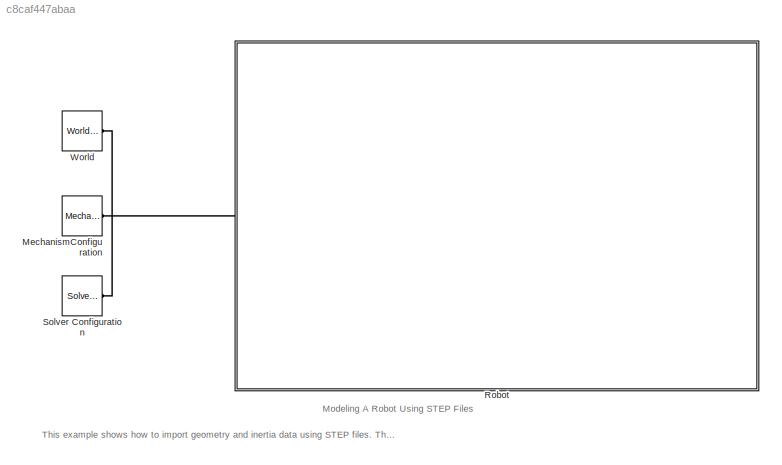
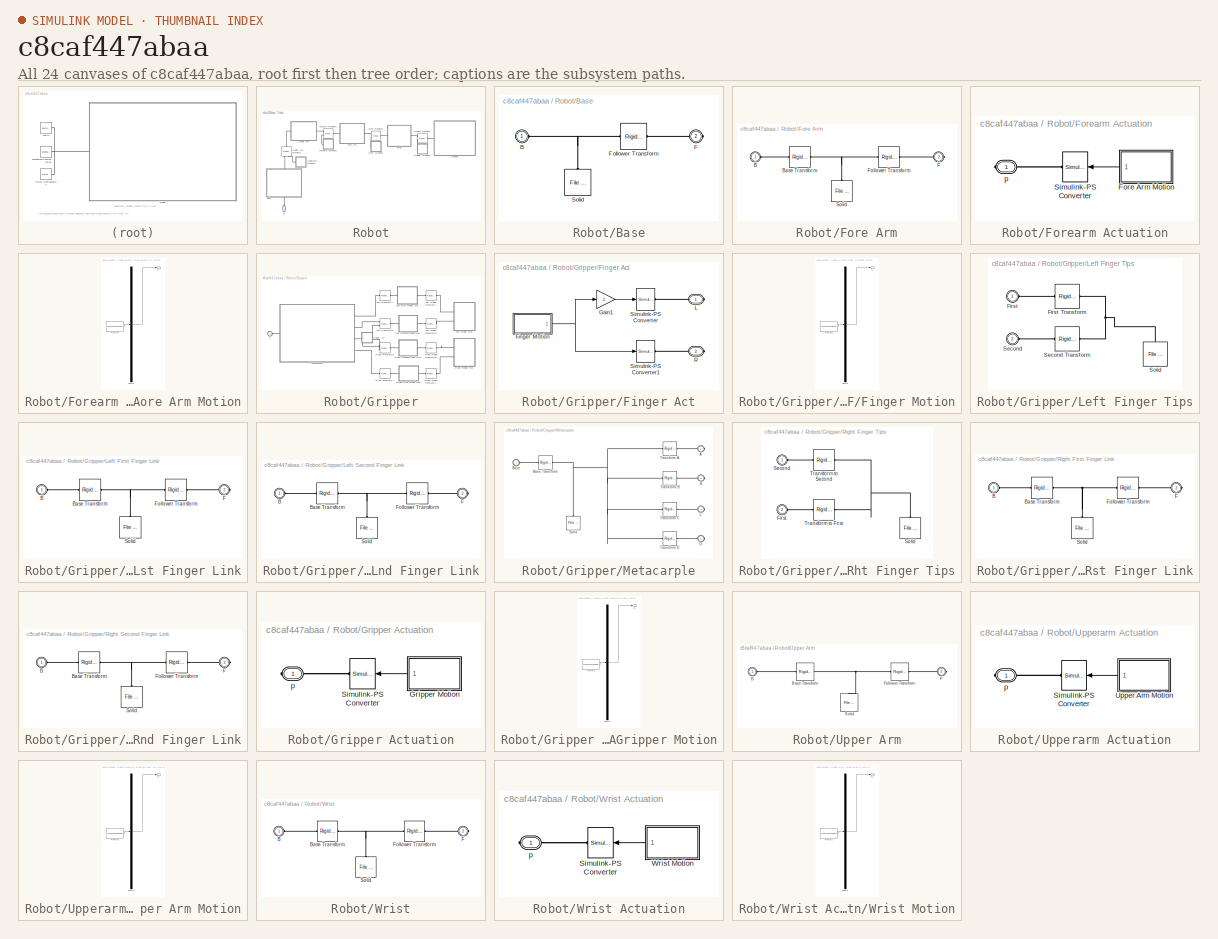
[diagram: thumbnail index - all 24 canvases of the model, root first then tree order]
MODEL slx_c8caf447abaa
KIND model
CONFIG AbsTol = auto
CONFIG EnableMultiTasking = on
CONFIG FixedStep = auto
CONFIG MaxStep = auto
CONFIG MinStep = auto
CONFIG RelTol = 1e-3
CONFIG SampleTimeConstraint = Unconstrained
CONFIG SolverName = ode45
CONFIG StartTime = 0.0
CONFIG StopTime = 20
BLOCK [Reference] MechanismConfiguration  REF=sm_lib/Utilities/Mechanism
Configuration
  Ports = [0, 0, 0, 0, 0, 0, 1]
  SourceBlock = sm_lib/Utilities/Mechanism\nConfiguration
  SourceProductBaseCode = MS
  SourceType = Mechanism\nConfiguration
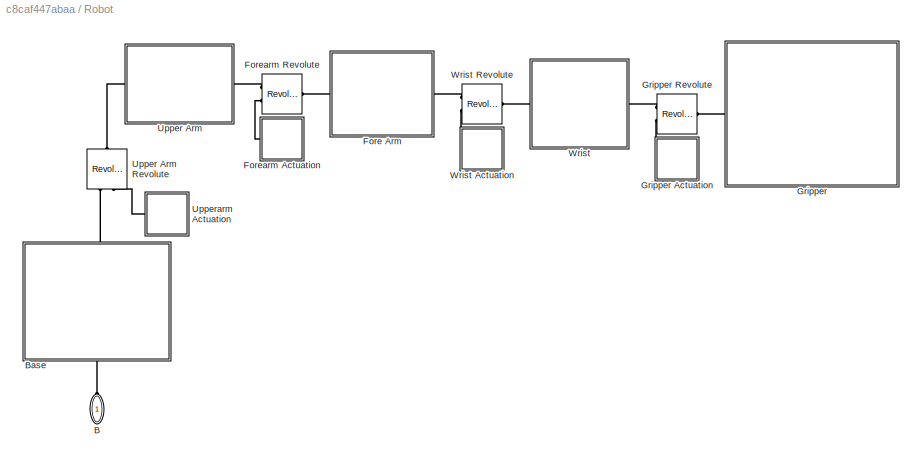
BLOCK [SubSystem] Robot
  NameLocation = top
  Ports = [0, 0, 0, 0, 0, 1]
  RequestExecContextInheritance = off
BLOCK [PMIOPort] Robot/B
  NameLocation = right
  Side = Left
BLOCK [SubSystem] Robot/Base
  NameLocation = right
  Ports = [0, 0, 0, 0, 0, 1, 1]
  RequestExecContextInheritance = off
BLOCK [PMIOPort] Robot/Base/B
  NameLocation = top
  Side = Left
BLOCK [PMIOPort] Robot/Base/F
  NameLocation = top
  Port = 2
  Side = Right
BLOCK [Reference] Robot/Base/Follower Transform  REF=sm_lib/Frames and
Transforms/Rigid
Transform
  Ports = [0, 0, 0, 0, 0, 1, 1]
  SourceBlock = sm_lib/Frames and\nTransforms/Rigid\nTransform
  SourceProductBaseCode = MS
  SourceType = Rigid\nTransform
BLOCK [Reference] Robot/Base/Solid  REF=sm_lib/Body Elements/File Solid
  NameLocation = right
  Ports = [0, 0, 0, 0, 0, 0, 1]
  SourceBlock = sm_lib/Body Elements/File Solid
  SourceProductBaseCode = MS
  SourceType = File Solid
BLOCK [SubSystem] Robot/Fore Arm
  NameLocation = top
  Ports = [0, 0, 0, 0, 0, 1, 1]
  RequestExecContextInheritance = off
BLOCK [PMIOPort] Robot/Fore Arm/B
  NameLocation = top
  Side = Left
BLOCK [Reference] Robot/Fore Arm/Base Transform  REF=sm_lib/Frames and
Transforms/Rigid
Transform
  NameLocation = top
  Ports = [0, 0, 0, 0, 0, 1, 1]
  SourceBlock = sm_lib/Frames and\nTransforms/Rigid\nTransform
  SourceProductBaseCode = MS
  SourceType = Rigid\nTransform
BLOCK [PMIOPort] Robot/Fore Arm/F
  NameLocation = top
  Port = 2
  Side = Right
BLOCK [Reference] Robot/Fore Arm/Follower Transform  REF=sm_lib/Frames and
Transforms/Rigid
Transform
  NameLocation = top
  Ports = [0, 0, 0, 0, 0, 1, 1]
  SourceBlock = sm_lib/Frames and\nTransforms/Rigid\nTransform
  SourceProductBaseCode = MS
  SourceType = Rigid\nTransform
BLOCK [Reference] Robot/Fore Arm/Solid  REF=sm_lib/Body Elements/File Solid
  NameLocation = right
  Ports = [0, 0, 0, 0, 0, 0, 1]
  SourceBlock = sm_lib/Body Elements/File Solid
  SourceProductBaseCode = MS
  SourceType = File Solid
BLOCK [SubSystem] Robot/Forearm Actuation
  Ports = [0, 0, 0, 0, 0, 0, 1]
  RequestExecContextInheritance = off
BLOCK [SubSystem] Robot/Forearm Actuation/Fore Arm Motion
  ClipboardFcn = sigbuilder_block('clipboard');
  CloseFcn = sigbuilder_block('close');
  ContinueFcn = sigbuilder_block('continue');
  CopyFcn = sigbuilder_block('copy');
  DeleteFcn = sigbuilder_block('delete');
  LoadFcn = sigbuilder_block('load');
  MaskHideContents = on
  ModelCloseFcn = sigbuilder_block('modelClose');
  NameChangeFcn = sigbuilder_block('namechange');
  NameLocation = top
  OpenFcn = sigbuilder_block('open',[437.6 199.2 550.4 400 ]);
  PauseFcn = sigbuilder_block('pause');
  Ports = [0, 1]
  PreSaveFcn = sigbuilder_block('preSave');
  RequestExecContextInheritance = off
  StartFcn = sigbuilder_block('start');
  StopFcn = sigbuilder_block('stop');
  Tag = STV Subsys
BLOCK [Demux] Robot/Forearm Actuation/Fore Arm Motion/Demux
  DisplayOption = none
  Outputs = 1
  Ports = [1, 1]
  Tag = STV Demux
BLOCK [Outport] Robot/Forearm Actuation/Fore Arm Motion/FA
  Tag = STV Outport
BLOCK [FromWorkspace] Robot/Forearm Actuation/Fore Arm Motion/FromWs
  Tag = STV FromWs
  VariableName = tuvar
BLOCK [Reference] Robot/Forearm Actuation/Simulink-PS Converter  REF=nesl_utility/Simulink-PS
Converter
  NameLocation = top
  Ports = [1, 0, 0, 0, 0, 0, 1]
  SourceBlock = nesl_utility/Simulink-PS\nConverter
  SourceProductBaseCode = PW,SS
  SourceType = Simulink-PS\nConverter
BLOCK [PMIOPort] Robot/Forearm Actuation/p
  NameLocation = top
  Side = Right
BLOCK [Reference] Robot/Forearm Revolute  REF=sm_lib/Joints/Revolute Joint
  NameLocation = top
  Ports = [0, 0, 0, 0, 0, 2, 1]
  SourceBlock = sm_lib/Joints/Revolute Joint
  SourceProductBaseCode = MS
  SourceType = Revolute Joint
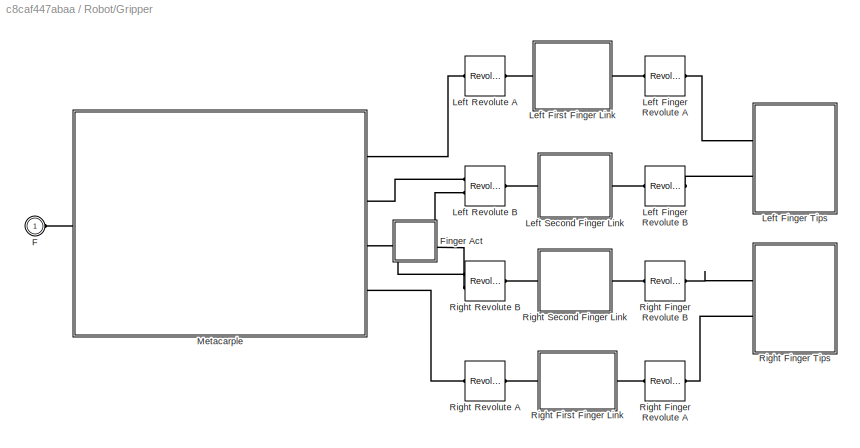
BLOCK [SubSystem] Robot/Gripper
  NameLocation = top
  Ports = [0, 0, 0, 0, 0, 1]
  RequestExecContextInheritance = off
BLOCK [SubSystem] Robot/Gripper Actuation
  Ports = [0, 0, 0, 0, 0, 0, 1]
  RequestExecContextInheritance = off
BLOCK [SubSystem] Robot/Gripper Actuation/Gripper Motion
  ClipboardFcn = sigbuilder_block('clipboard');
  CloseFcn = sigbuilder_block('close');
  ContinueFcn = sigbuilder_block('continue');
  CopyFcn = sigbuilder_block('copy');
  DeleteFcn = sigbuilder_block('delete');
  LoadFcn = sigbuilder_block('load');
  MaskHideContents = on
  ModelCloseFcn = sigbuilder_block('modelClose');
  NameChangeFcn = sigbuilder_block('namechange');
  NameLocation = top
  OpenFcn = sigbuilder_block('open',[437.6 199.2 550.4 400 ]);
  PauseFcn = sigbuilder_block('pause');
  Ports = [0, 1]
  PreSaveFcn = sigbuilder_block('preSave');
  RequestExecContextInheritance = off
  StartFcn = sigbuilder_block('start');
  StopFcn = sigbuilder_block('stop');
  Tag = STV Subsys
BLOCK [Demux] Robot/Gripper Actuation/Gripper Motion/Demux
  DisplayOption = none
  Outputs = 1
  Ports = [1, 1]
  Tag = STV Demux
BLOCK [FromWorkspace] Robot/Gripper Actuation/Gripper Motion/FromWs
  Tag = STV FromWs
  VariableName = tuvar
BLOCK [Outport] Robot/Gripper Actuation/Gripper Motion/GA
  Tag = STV Outport
BLOCK [Reference] Robot/Gripper Actuation/Simulink-PS Converter  REF=nesl_utility/Simulink-PS
Converter
  NameLocation = top
  Ports = [1, 0, 0, 0, 0, 0, 1]
  SourceBlock = nesl_utility/Simulink-PS\nConverter
  SourceProductBaseCode = PW,SS
  SourceType = Simulink-PS\nConverter
BLOCK [PMIOPort] Robot/Gripper Actuation/p
  NameLocation = top
  Side = Right
BLOCK [Reference] Robot/Gripper Revolute  REF=sm_lib/Joints/Revolute Joint
  NameLocation = top
  Ports = [0, 0, 0, 0, 0, 2, 1]
  SourceBlock = sm_lib/Joints/Revolute Joint
  SourceProductBaseCode = MS
  SourceType = Revolute Joint
BLOCK [PMIOPort] Robot/Gripper/F
  Side = Left
BLOCK [SubSystem] Robot/Gripper/Finger Act
  NameLocation = top
  Ports = [0, 0, 0, 0, 0, 0, 2]
  RequestExecContextInheritance = off
BLOCK [SubSystem] Robot/Gripper/Finger Act/Finger Motion
  ClipboardFcn = sigbuilder_block('clipboard');
  CloseFcn = sigbuilder_block('close');
  ContinueFcn = sigbuilder_block('continue');
  CopyFcn = sigbuilder_block('copy');
  DeleteFcn = sigbuilder_block('delete');
  LoadFcn = sigbuilder_block('load');
  MaskHideContents = on
  ModelCloseFcn = sigbuilder_block('modelClose');
  NameChangeFcn = sigbuilder_block('namechange');
  OpenFcn = sigbuilder_block('open',[437.6 199.2 550.4 400 ]);
  PauseFcn = sigbuilder_block('pause');
  Ports = [0, 1]
  PreSaveFcn = sigbuilder_block('preSave');
  RequestExecContextInheritance = off
  StartFcn = sigbuilder_block('start');
  StopFcn = sigbuilder_block('stop');
  Tag = STV Subsys
BLOCK [Demux] Robot/Gripper/Finger Act/Finger Motion/Demux
  DisplayOption = none
  Outputs = 1
  Ports = [1, 1]
  Tag = STV Demux
BLOCK [Outport] Robot/Gripper/Finger Act/Finger Motion/FA
  Tag = STV Outport
BLOCK [FromWorkspace] Robot/Gripper/Finger Act/Finger Motion/FromWs
  Tag = STV FromWs
  VariableName = tuvar
BLOCK [Gain] Robot/Gripper/Finger Act/Gain1
  Gain = -1
BLOCK [PMIOPort] Robot/Gripper/Finger Act/L
  Side = Right
BLOCK [PMIOPort] Robot/Gripper/Finger Act/R
  Port = 2
  Side = Right
BLOCK [Reference] Robot/Gripper/Finger Act/Simulink-PS Converter  REF=nesl_utility/Simulink-PS
Converter
  Ports = [1, 0, 0, 0, 0, 0, 1]
  SourceBlock = nesl_utility/Simulink-PS\nConverter
  SourceProductBaseCode = PW,SS
  SourceType = Simulink-PS\nConverter
BLOCK [Reference] Robot/Gripper/Finger Act/Simulink-PS Converter1  REF=nesl_utility/Simulink-PS
Converter
  Ports = [1, 0, 0, 0, 0, 0, 1]
  SourceBlock = nesl_utility/Simulink-PS\nConverter
  SourceProductBaseCode = PW,SS
  SourceType = Simulink-PS\nConverter
BLOCK [Reference] Robot/Gripper/Left Finger Revolute  A  REF=sm_lib/Joints/Revolute Joint
  NameLocation = top
  Ports = [0, 0, 0, 0, 0, 1, 1]
  SourceBlock = sm_lib/Joints/Revolute Joint
  SourceProductBaseCode = MS
  SourceType = Revolute Joint
BLOCK [Reference] Robot/Gripper/Left Finger Revolute B  REF=sm_lib/Joints/Revolute Joint
  NameLocation = top
  Ports = [0, 0, 0, 0, 0, 1, 1]
  SourceBlock = sm_lib/Joints/Revolute Joint
  SourceProductBaseCode = MS
  SourceType = Revolute Joint
BLOCK [SubSystem] Robot/Gripper/Left Finger Tips
  NameLocation = top
  Ports = [0, 0, 0, 0, 0, 2]
  RequestExecContextInheritance = off
BLOCK [PMIOPort] Robot/Gripper/Left Finger Tips/First
  NameLocation = top
  Side = Left
BLOCK [Reference] Robot/Gripper/Left Finger Tips/First Transform  REF=sm_lib/Frames and
Transforms/Rigid
Transform
  NameLocation = top
  Ports = [0, 0, 0, 0, 0, 1, 1]
  SourceBlock = sm_lib/Frames and\nTransforms/Rigid\nTransform
  SourceProductBaseCode = MS
  SourceType = Rigid\nTransform
BLOCK [PMIOPort] Robot/Gripper/Left Finger Tips/Second
  NameLocation = top
  Port = 2
  Side = Left
BLOCK [Reference] Robot/Gripper/Left Finger Tips/Second Transform  REF=sm_lib/Frames and
Transforms/Rigid
Transform
  Ports = [0, 0, 0, 0, 0, 1, 1]
  SourceBlock = sm_lib/Frames and\nTransforms/Rigid\nTransform
  SourceProductBaseCode = MS
  SourceType = Rigid\nTransform
BLOCK [Reference] Robot/Gripper/Left Finger Tips/Solid  REF=sm_lib/Body Elements/File Solid
  NameLocation = right
  Ports = [0, 0, 0, 0, 0, 0, 1]
  SourceBlock = sm_lib/Body Elements/File Solid
  SourceProductBaseCode = MS
  SourceType = File Solid
BLOCK [SubSystem] Robot/Gripper/Left First Finger Link
  NameLocation = top
  Ports = [0, 0, 0, 0, 0, 1, 1]
  RequestExecContextInheritance = off
BLOCK [PMIOPort] Robot/Gripper/Left First Finger Link/B
  NameLocation = top
  Side = Left
BLOCK [Reference] Robot/Gripper/Left First Finger Link/Base Transform  REF=sm_lib/Frames and
Transforms/Rigid
Transform
  NameLocation = top
  Ports = [0, 0, 0, 0, 0, 1, 1]
  SourceBlock = sm_lib/Frames and\nTransforms/Rigid\nTransform
  SourceProductBaseCode = MS
  SourceType = Rigid\nTransform
BLOCK [PMIOPort] Robot/Gripper/Left First Finger Link/F
  NameLocation = top
  Port = 2
  Side = Right
BLOCK [Reference] Robot/Gripper/Left First Finger Link/Follower Transform  REF=sm_lib/Frames and
Transforms/Rigid
Transform
  NameLocation = top
  Ports = [0, 0, 0, 0, 0, 1, 1]
  SourceBlock = sm_lib/Frames and\nTransforms/Rigid\nTransform
  SourceProductBaseCode = MS
  SourceType = Rigid\nTransform
BLOCK [Reference] Robot/Gripper/Left First Finger Link/Solid  REF=sm_lib/Body Elements/File Solid
  NameLocation = right
  Ports = [0, 0, 0, 0, 0, 0, 1]
  SourceBlock = sm_lib/Body Elements/File Solid
  SourceProductBaseCode = MS
  SourceType = File Solid
BLOCK [Reference] Robot/Gripper/Left Revolute A  REF=sm_lib/Joints/Revolute Joint
  NameLocation = top
  Ports = [0, 0, 0, 0, 0, 1, 1]
  SourceBlock = sm_lib/Joints/Revolute Joint
  SourceProductBaseCode = MS
  SourceType = Revolute Joint
BLOCK [Reference] Robot/Gripper/Left Revolute B  REF=sm_lib/Joints/Revolute Joint
  NameLocation = top
  Ports = [0, 0, 0, 0, 0, 2, 1]
  SourceBlock = sm_lib/Joints/Revolute Joint
  SourceProductBaseCode = MS
  SourceType = Revolute Joint
BLOCK [SubSystem] Robot/Gripper/Left Second Finger Link
  NameLocation = top
  Ports = [0, 0, 0, 0, 0, 1, 1]
  RequestExecContextInheritance = off
BLOCK [PMIOPort] Robot/Gripper/Left Second Finger Link/B
  NameLocation = top
  Side = Left
BLOCK [Reference] Robot/Gripper/Left Second Finger Link/Base Transform  REF=sm_lib/Frames and
Transforms/Rigid
Transform
  NameLocation = top
  Ports = [0, 0, 0, 0, 0, 1, 1]
  SourceBlock = sm_lib/Frames and\nTransforms/Rigid\nTransform
  SourceProductBaseCode = MS
  SourceType = Rigid\nTransform
BLOCK [PMIOPort] Robot/Gripper/Left Second Finger Link/F
  NameLocation = top
  Port = 2
  Side = Right
BLOCK [Reference] Robot/Gripper/Left Second Finger Link/Follower Transform  REF=sm_lib/Frames and
Transforms/Rigid
Transform
  NameLocation = top
  Ports = [0, 0, 0, 0, 0, 1, 1]
  SourceBlock = sm_lib/Frames and\nTransforms/Rigid\nTransform
  SourceProductBaseCode = MS
  SourceType = Rigid\nTransform
BLOCK [Reference] Robot/Gripper/Left Second Finger Link/Solid  REF=sm_lib/Body Elements/File Solid
  NameLocation = right
  Ports = [0, 0, 0, 0, 0, 0, 1]
  SourceBlock = sm_lib/Body Elements/File Solid
  SourceProductBaseCode = MS
  SourceType = File Solid
BLOCK [SubSystem] Robot/Gripper/Metacarple
  Ports = [0, 0, 0, 0, 0, 1, 4]
  RequestExecContextInheritance = off
BLOCK [PMIOPort] Robot/Gripper/Metacarple/A
  NameLocation = top
  Port = 2
  Side = Right
BLOCK [PMIOPort] Robot/Gripper/Metacarple/B
  NameLocation = top
  Port = 3
  Side = Right
BLOCK [PMIOPort] Robot/Gripper/Metacarple/Base
  NameLocation = top
  Side = Left
BLOCK [Reference] Robot/Gripper/Metacarple/Base Transform  REF=sm_lib/Frames and
Transforms/Rigid
Transform
  NameLocation = top
  Ports = [0, 0, 0, 0, 0, 1, 1]
  SourceBlock = sm_lib/Frames and\nTransforms/Rigid\nTransform
  SourceProductBaseCode = MS
  SourceType = Rigid\nTransform
BLOCK [PMIOPort] Robot/Gripper/Metacarple/C
  NameLocation = top
  Port = 4
  Side = Right
BLOCK [PMIOPort] Robot/Gripper/Metacarple/D
  NameLocation = top
  Port = 5
  Side = Right
BLOCK [Reference] Robot/Gripper/Metacarple/Solid  REF=sm_lib/Body Elements/File Solid
  NameLocation = right
  Ports = [0, 0, 0, 0, 0, 0, 1]
  SourceBlock = sm_lib/Body Elements/File Solid
  SourceProductBaseCode = MS
  SourceType = File Solid
BLOCK [Reference] Robot/Gripper/Metacarple/Transform A  REF=sm_lib/Frames and
Transforms/Rigid
Transform
  NameLocation = top
  Ports = [0, 0, 0, 0, 0, 1, 1]
  SourceBlock = sm_lib/Frames and\nTransforms/Rigid\nTransform
  SourceProductBaseCode = MS
  SourceType = Rigid\nTransform
BLOCK [Reference] Robot/Gripper/Metacarple/Transform B  REF=sm_lib/Frames and
Transforms/Rigid
Transform
  NameLocation = top
  Ports = [0, 0, 0, 0, 0, 1, 1]
  SourceBlock = sm_lib/Frames and\nTransforms/Rigid\nTransform
  SourceProductBaseCode = MS
  SourceType = Rigid\nTransform
BLOCK [Reference] Robot/Gripper/Metacarple/Transform C  REF=sm_lib/Frames and
Transforms/Rigid
Transform
  NameLocation = top
  Ports = [0, 0, 0, 0, 0, 1, 1]
  SourceBlock = sm_lib/Frames and\nTransforms/Rigid\nTransform
  SourceProductBaseCode = MS
  SourceType = Rigid\nTransform
BLOCK [Reference] Robot/Gripper/Metacarple/Transform D  REF=sm_lib/Frames and
Transforms/Rigid
Transform
  NameLocation = top
  Ports = [0, 0, 0, 0, 0, 1, 1]
  SourceBlock = sm_lib/Frames and\nTransforms/Rigid\nTransform
  SourceProductBaseCode = MS
  SourceType = Rigid\nTransform
BLOCK [Reference] Robot/Gripper/Right Finger Revolute A  REF=sm_lib/Joints/Revolute Joint
  Ports = [0, 0, 0, 0, 0, 1, 1]
  SourceBlock = sm_lib/Joints/Revolute Joint
  SourceProductBaseCode = MS
  SourceType = Revolute Joint
BLOCK [Reference] Robot/Gripper/Right Finger Revolute B  REF=sm_lib/Joints/Revolute Joint
  Ports = [0, 0, 0, 0, 0, 1, 1]
  SourceBlock = sm_lib/Joints/Revolute Joint
  SourceProductBaseCode = MS
  SourceType = Revolute Joint
BLOCK [SubSystem] Robot/Gripper/Right Finger Tips
  Ports = [0, 0, 0, 0, 0, 2]
  RequestExecContextInheritance = off
BLOCK [PMIOPort] Robot/Gripper/Right Finger Tips/First
  NameLocation = top
  Port = 2
  Side = Left
BLOCK [PMIOPort] Robot/Gripper/Right Finger Tips/Second
  NameLocation = top
  Side = Left
BLOCK [Reference] Robot/Gripper/Right Finger Tips/Solid  REF=sm_lib/Body Elements/File Solid
  NameLocation = right
  Ports = [0, 0, 0, 0, 0, 0, 1]
  SourceBlock = sm_lib/Body Elements/File Solid
  SourceProductBaseCode = MS
  SourceType = File Solid
BLOCK [Reference] Robot/Gripper/Right Finger Tips/Transform to First  REF=sm_lib/Frames and
Transforms/Rigid
Transform
  NameLocation = top
  Ports = [0, 0, 0, 0, 0, 1, 1]
  SourceBlock = sm_lib/Frames and\nTransforms/Rigid\nTransform
  SourceProductBaseCode = MS
  SourceType = Rigid\nTransform
BLOCK [Reference] Robot/Gripper/Right Finger Tips/Transform to Second  REF=sm_lib/Frames and
Transforms/Rigid
Transform
  NameLocation = top
  Ports = [0, 0, 0, 0, 0, 1, 1]
  SourceBlock = sm_lib/Frames and\nTransforms/Rigid\nTransform
  SourceProductBaseCode = MS
  SourceType = Rigid\nTransform
BLOCK [SubSystem] Robot/Gripper/Right First Finger Link
  Ports = [0, 0, 0, 0, 0, 1, 1]
  RequestExecContextInheritance = off
BLOCK [PMIOPort] Robot/Gripper/Right First Finger Link/B
  NameLocation = top
  Side = Left
BLOCK [Reference] Robot/Gripper/Right First Finger Link/Base Transform  REF=sm_lib/Frames and
Transforms/Rigid
Transform
  NameLocation = top
  Ports = [0, 0, 0, 0, 0, 1, 1]
  SourceBlock = sm_lib/Frames and\nTransforms/Rigid\nTransform
  SourceProductBaseCode = MS
  SourceType = Rigid\nTransform
BLOCK [PMIOPort] Robot/Gripper/Right First Finger Link/F
  NameLocation = top
  Port = 2
  Side = Right
BLOCK [Reference] Robot/Gripper/Right First Finger Link/Follower Transform  REF=sm_lib/Frames and
Transforms/Rigid
Transform
  NameLocation = top
  Ports = [0, 0, 0, 0, 0, 1, 1]
  SourceBlock = sm_lib/Frames and\nTransforms/Rigid\nTransform
  SourceProductBaseCode = MS
  SourceType = Rigid\nTransform
BLOCK [Reference] Robot/Gripper/Right First Finger Link/Solid  REF=sm_lib/Body Elements/File Solid
  NameLocation = right
  Ports = [0, 0, 0, 0, 0, 0, 1]
  SourceBlock = sm_lib/Body Elements/File Solid
  SourceProductBaseCode = MS
  SourceType = File Solid
BLOCK [Reference] Robot/Gripper/Right Revolute A  REF=sm_lib/Joints/Revolute Joint
  Ports = [0, 0, 0, 0, 0, 1, 1]
  SourceBlock = sm_lib/Joints/Revolute Joint
  SourceProductBaseCode = MS
  SourceType = Revolute Joint
BLOCK [Reference] Robot/Gripper/Right Revolute B  REF=sm_lib/Joints/Revolute Joint
  Ports = [0, 0, 0, 0, 0, 2, 1]
  SourceBlock = sm_lib/Joints/Revolute Joint
  SourceProductBaseCode = MS
  SourceType = Revolute Joint
BLOCK [SubSystem] Robot/Gripper/Right Second Finger Link
  Ports = [0, 0, 0, 0, 0, 1, 1]
  RequestExecContextInheritance = off
BLOCK [PMIOPort] Robot/Gripper/Right Second Finger Link/B
  NameLocation = top
  Side = Left
BLOCK [Reference] Robot/Gripper/Right Second Finger Link/Base Transform  REF=sm_lib/Frames and
Transforms/Rigid
Transform
  NameLocation = top
  Ports = [0, 0, 0, 0, 0, 1, 1]
  SourceBlock = sm_lib/Frames and\nTransforms/Rigid\nTransform
  SourceProductBaseCode = MS
  SourceType = Rigid\nTransform
BLOCK [PMIOPort] Robot/Gripper/Right Second Finger Link/F
  NameLocation = top
  Port = 2
  Side = Right
BLOCK [Reference] Robot/Gripper/Right Second Finger Link/Follower Transform  REF=sm_lib/Frames and
Transforms/Rigid
Transform
  NameLocation = top
  Ports = [0, 0, 0, 0, 0, 1, 1]
  SourceBlock = sm_lib/Frames and\nTransforms/Rigid\nTransform
  SourceProductBaseCode = MS
  SourceType = Rigid\nTransform
BLOCK [Reference] Robot/Gripper/Right Second Finger Link/Solid  REF=sm_lib/Body Elements/File Solid
  NameLocation = right
  Ports = [0, 0, 0, 0, 0, 0, 1]
  SourceBlock = sm_lib/Body Elements/File Solid
  SourceProductBaseCode = MS
  SourceType = File Solid
BLOCK [SubSystem] Robot/Upper Arm
  NameLocation = top
  Ports = [0, 0, 0, 0, 0, 1, 1]
  RequestExecContextInheritance = off
BLOCK [Reference] Robot/Upper Arm Revolute  REF=sm_lib/Joints/Revolute Joint
  NameLocation = left
  Ports = [0, 0, 0, 0, 0, 2, 1]
  SourceBlock = sm_lib/Joints/Revolute Joint
  SourceProductBaseCode = MS
  SourceType = Revolute Joint
BLOCK [PMIOPort] Robot/Upper Arm/B
  NameLocation = top
  Side = Left
BLOCK [Reference] Robot/Upper Arm/Base Transform  REF=sm_lib/Frames and
Transforms/Rigid
Transform
  NameLocation = top
  Ports = [0, 0, 0, 0, 0, 1, 1]
  SourceBlock = sm_lib/Frames and\nTransforms/Rigid\nTransform
  SourceProductBaseCode = MS
  SourceType = Rigid\nTransform
BLOCK [PMIOPort] Robot/Upper Arm/F
  NameLocation = top
  Port = 2
  Side = Right
BLOCK [Reference] Robot/Upper Arm/Follower Transform  REF=sm_lib/Frames and
Transforms/Rigid
Transform
  NameLocation = top
  Ports = [0, 0, 0, 0, 0, 1, 1]
  SourceBlock = sm_lib/Frames and\nTransforms/Rigid\nTransform
  SourceProductBaseCode = MS
  SourceType = Rigid\nTransform
BLOCK [Reference] Robot/Upper Arm/Solid  REF=sm_lib/Body Elements/File Solid
  NameLocation = right
  Ports = [0, 0, 0, 0, 0, 0, 1]
  SourceBlock = sm_lib/Body Elements/File Solid
  SourceProductBaseCode = MS
  SourceType = File Solid
BLOCK [SubSystem] Robot/Upperarm Actuation
  NameLocation = top
  Ports = [0, 0, 0, 0, 0, 0, 1]
  RequestExecContextInheritance = off
BLOCK [Reference] Robot/Upperarm Actuation/Simulink-PS Converter  REF=nesl_utility/Simulink-PS
Converter
  NameLocation = top
  Ports = [1, 0, 0, 0, 0, 0, 1]
  SourceBlock = nesl_utility/Simulink-PS\nConverter
  SourceProductBaseCode = PW,SS
  SourceType = Simulink-PS\nConverter
BLOCK [SubSystem] Robot/Upperarm Actuation/Upper Arm Motion
  ClipboardFcn = sigbuilder_block('clipboard');
  CloseFcn = sigbuilder_block('close');
  ContinueFcn = sigbuilder_block('continue');
  CopyFcn = sigbuilder_block('copy');
  DeleteFcn = sigbuilder_block('delete');
  LoadFcn = sigbuilder_block('load');
  MaskHideContents = on
  ModelCloseFcn = sigbuilder_block('modelClose');
  NameChangeFcn = sigbuilder_block('namechange');
  NameLocation = top
  OpenFcn = sigbuilder_block('open',[437.6 199.2 550.4 400 ]);
  PauseFcn = sigbuilder_block('pause');
  Ports = [0, 1]
  PreSaveFcn = sigbuilder_block('preSave');
  RequestExecContextInheritance = off
  StartFcn = sigbuilder_block('start');
  StopFcn = sigbuilder_block('stop');
  Tag = STV Subsys
BLOCK [Demux] Robot/Upperarm Actuation/Upper Arm Motion/Demux
  DisplayOption = none
  Outputs = 1
  Ports = [1, 1]
  Tag = STV Demux
BLOCK [FromWorkspace] Robot/Upperarm Actuation/Upper Arm Motion/FromWs
  Tag = STV FromWs
  VariableName = tuvar
BLOCK [Outport] Robot/Upperarm Actuation/Upper Arm Motion/UA
  Tag = STV Outport
BLOCK [PMIOPort] Robot/Upperarm Actuation/p
  NameLocation = top
  Side = Right
BLOCK [SubSystem] Robot/Wrist
  NameLocation = top
  Ports = [0, 0, 0, 0, 0, 1, 1]
  RequestExecContextInheritance = off
BLOCK [SubSystem] Robot/Wrist Actuation
  Ports = [0, 0, 0, 0, 0, 0, 1]
  RequestExecContextInheritance = off
BLOCK [Reference] Robot/Wrist Actuation/Simulink-PS Converter  REF=nesl_utility/Simulink-PS
Converter
  NameLocation = top
  Ports = [1, 0, 0, 0, 0, 0, 1]
  SourceBlock = nesl_utility/Simulink-PS\nConverter
  SourceProductBaseCode = PW,SS
  SourceType = Simulink-PS\nConverter
BLOCK [SubSystem] Robot/Wrist Actuation/Wrist Motion
  ClipboardFcn = sigbuilder_block('clipboard');
  CloseFcn = sigbuilder_block('close');
  ContinueFcn = sigbuilder_block('continue');
  CopyFcn = sigbuilder_block('copy');
  DeleteFcn = sigbuilder_block('delete');
  LoadFcn = sigbuilder_block('load');
  MaskHideContents = on
  ModelCloseFcn = sigbuilder_block('modelClose');
  NameChangeFcn = sigbuilder_block('namechange');
  NameLocation = top
  OpenFcn = sigbuilder_block('open',[437.6 199.2 550.4 400 ]);
  PauseFcn = sigbuilder_block('pause');
  Ports = [0, 1]
  PreSaveFcn = sigbuilder_block('preSave');
  RequestExecContextInheritance = off
  StartFcn = sigbuilder_block('start');
  StopFcn = sigbuilder_block('stop');
  Tag = STV Subsys
BLOCK [Demux] Robot/Wrist Actuation/Wrist Motion/Demux
  DisplayOption = none
  Outputs = 1
  Ports = [1, 1]
  Tag = STV Demux
BLOCK [FromWorkspace] Robot/Wrist Actuation/Wrist Motion/FromWs
  Tag = STV FromWs
  VariableName = tuvar
BLOCK [Outport] Robot/Wrist Actuation/Wrist Motion/WA
  Tag = STV Outport
BLOCK [PMIOPort] Robot/Wrist Actuation/p
  NameLocation = top
  Side = Right
BLOCK [Reference] Robot/Wrist Revolute  REF=sm_lib/Joints/Revolute Joint
  NameLocation = top
  Ports = [0, 0, 0, 0, 0, 2, 1]
  SourceBlock = sm_lib/Joints/Revolute Joint
  SourceProductBaseCode = MS
  SourceType = Revolute Joint
BLOCK [PMIOPort] Robot/Wrist/B
  NameLocation = top
  Side = Left
BLOCK [Reference] Robot/Wrist/Base Transform  REF=sm_lib/Frames and
Transforms/Rigid
Transform
  NameLocation = top
  Ports = [0, 0, 0, 0, 0, 1, 1]
  SourceBlock = sm_lib/Frames and\nTransforms/Rigid\nTransform
  SourceProductBaseCode = MS
  SourceType = Rigid\nTransform
BLOCK [PMIOPort] Robot/Wrist/F
  NameLocation = top
  Port = 2
  Side = Right
BLOCK [Reference] Robot/Wrist/Follower Transform  REF=sm_lib/Frames and
Transforms/Rigid
Transform
  NameLocation = top
  Ports = [0, 0, 0, 0, 0, 1, 1]
  SourceBlock = sm_lib/Frames and\nTransforms/Rigid\nTransform
  SourceProductBaseCode = MS
  SourceType = Rigid\nTransform
BLOCK [Reference] Robot/Wrist/Solid  REF=sm_lib/Body Elements/File Solid
  NameLocation = right
  Ports = [0, 0, 0, 0, 0, 0, 1]
  SourceBlock = sm_lib/Body Elements/File Solid
  SourceProductBaseCode = MS
  SourceType = File Solid
BLOCK [Reference] Solver Configuration  REF=nesl_utility/Solver
Configuration
  Ports = [0, 0, 0, 0, 0, 0, 1]
  SourceBlock = nesl_utility/Solver\nConfiguration
  SourceProductBaseCode = PW,SS
  SourceType = Solver\nConfiguration
BLOCK [Reference] World  REF=sm_lib/Frames and
Transforms/World Frame
  Ports = [0, 0, 0, 0, 0, 0, 1]
  SourceBlock = sm_lib/Frames and\nTransforms/World Frame
  SourceProductBaseCode = MS
  SourceType = World Frame
ANNOTATION (root): Modeling A Robot Using STEP Files
ANNOTATION (root): This example shows how to import geometry and inertia data using STEP files. The STEP file is a standard format used commonly for data exchange between CAD applications. The format can capture a parts complete geometry information. Given the mass of the part and the volume distribution Simscape Multibody can automatically compute the inertia properties of the part. Open the Solid block dialogs in ...<+347ch>
LINE Robot/Forearm Actuation/Fore Arm Motion:1 -> Robot/Forearm Actuation/Simulink-PS Converter:1
LINE Robot/Gripper Actuation/Gripper Motion:1 -> Robot/Gripper Actuation/Simulink-PS Converter:1
NET Robot/Gripper/Finger Act/Finger Motion:1 -> Robot/Gripper/Finger Act/Gain1:1, Robot/Gripper/Finger Act/Simulink-PS Converter1:1
LINE Robot/Gripper/Finger Act/Gain1:1 -> Robot/Gripper/Finger Act/Simulink-PS Converter:1
LINE Robot/Upperarm Actuation/Upper Arm Motion:1 -> Robot/Upperarm Actuation/Simulink-PS Converter:1
LINE Robot/Wrist Actuation/Wrist Motion:1 -> Robot/Wrist Actuation/Simulink-PS Converter:1
PNET net1: MechanismConfiguration:RConn1 -- Robot:LConn1 -- Solver Configuration:RConn1 -- World:RConn1
PLINE Robot/B:RConn1 -- Robot/Base:LConn1
PNET net2: Robot/Base/B:RConn1 -- Robot/Base/Follower Transform:LConn1 -- Robot/Base/Solid:RConn1
PLINE Robot/Base/F:RConn1 -- Robot/Base/Follower Transform:RConn1
PLINE Robot/Base:RConn1 -- Robot/Upper Arm Revolute:LConn1
PLINE Robot/Fore Arm/B:RConn1 -- Robot/Fore Arm/Base Transform:RConn1
PNET net3: Robot/Fore Arm/Base Transform:LConn1 -- Robot/Fore Arm/Follower Transform:LConn1 -- Robot/Fore Arm/Solid:RConn1
PLINE Robot/Fore Arm/F:RConn1 -- Robot/Fore Arm/Follower Transform:RConn1
PLINE Robot/Fore Arm:LConn1 -- Robot/Forearm Revolute:RConn1
PLINE Robot/Fore Arm:RConn1 -- Robot/Wrist Revolute:LConn1
PLINE Robot/Forearm Actuation/Simulink-PS Converter:RConn1 -- Robot/Forearm Actuation/p:RConn1
PLINE Robot/Forearm Actuation:RConn1 -- Robot/Forearm Revolute:LConn2
PLINE Robot/Forearm Revolute:LConn1 -- Robot/Upper Arm:RConn1
PLINE Robot/Gripper Actuation/Simulink-PS Converter:RConn1 -- Robot/Gripper Actuation/p:RConn1
PLINE Robot/Gripper Actuation:RConn1 -- Robot/Gripper Revolute:LConn2
PLINE Robot/Gripper Revolute:LConn1 -- Robot/Wrist:RConn1
PLINE Robot/Gripper Revolute:RConn1 -- Robot/Gripper:LConn1
PLINE Robot/Gripper/F:RConn1 -- Robot/Gripper/Metacarple:LConn1
PLINE Robot/Gripper/Finger Act/L:RConn1 -- Robot/Gripper/Finger Act/Simulink-PS Converter:RConn1
PLINE Robot/Gripper/Finger Act/R:RConn1 -- Robot/Gripper/Finger Act/Simulink-PS Converter1:RConn1
PLINE Robot/Gripper/Finger Act:RConn1 -- Robot/Gripper/Left Revolute B:LConn2
PLINE Robot/Gripper/Finger Act:RConn2 -- Robot/Gripper/Right Revolute B:LConn2
PLINE Robot/Gripper/Left Finger Revolute  A:LConn1 -- Robot/Gripper/Left First Finger Link:RConn1
PLINE Robot/Gripper/Left Finger Revolute  A:RConn1 -- Robot/Gripper/Left Finger Tips:LConn1
PLINE Robot/Gripper/Left Finger Revolute B:LConn1 -- Robot/Gripper/Left Second Finger Link:RConn1
PLINE Robot/Gripper/Left Finger Revolute B:RConn1 -- Robot/Gripper/Left Finger Tips:LConn2
PNET net4: Robot/Gripper/Left Finger Tips/First Transform:LConn1 -- Robot/Gripper/Left Finger Tips/Second Transform:LConn1 -- Robot/Gripper/Left Finger Tips/Solid:RConn1
PLINE Robot/Gripper/Left Finger Tips/First Transform:RConn1 -- Robot/Gripper/Left Finger Tips/First:RConn1
PLINE Robot/Gripper/Left Finger Tips/Second Transform:RConn1 -- Robot/Gripper/Left Finger Tips/Second:RConn1
PLINE Robot/Gripper/Left First Finger Link/B:RConn1 -- Robot/Gripper/Left First Finger Link/Base Transform:RConn1
PNET net5: Robot/Gripper/Left First Finger Link/Base Transform:LConn1 -- Robot/Gripper/Left First Finger Link/Follower Transform:LConn1 -- Robot/Gripper/Left First Finger Link/Solid:RConn1
PLINE Robot/Gripper/Left First Finger Link/F:RConn1 -- Robot/Gripper/Left First Finger Link/Follower Transform:RConn1
PLINE Robot/Gripper/Left First Finger Link:LConn1 -- Robot/Gripper/Left Revolute A:RConn1
PLINE Robot/Gripper/Left Revolute A:LConn1 -- Robot/Gripper/Metacarple:RConn1
PLINE Robot/Gripper/Left Revolute B:LConn1 -- Robot/Gripper/Metacarple:RConn2
PLINE Robot/Gripper/Left Revolute B:RConn1 -- Robot/Gripper/Left Second Finger Link:LConn1
PLINE Robot/Gripper/Left Second Finger Link/B:RConn1 -- Robot/Gripper/Left Second Finger Link/Base Transform:RConn1
PNET net6: Robot/Gripper/Left Second Finger Link/Base Transform:LConn1 -- Robot/Gripper/Left Second Finger Link/Follower Transform:LConn1 -- Robot/Gripper/Left Second Finger Link/Solid:RConn1
PLINE Robot/Gripper/Left Second Finger Link/F:RConn1 -- Robot/Gripper/Left Second Finger Link/Follower Transform:RConn1
PLINE Robot/Gripper/Metacarple/A:RConn1 -- Robot/Gripper/Metacarple/Transform A:RConn1
PLINE Robot/Gripper/Metacarple/B:RConn1 -- Robot/Gripper/Metacarple/Transform B:RConn1
PNET net7: Robot/Gripper/Metacarple/Base Transform:LConn1 -- Robot/Gripper/Metacarple/Solid:RConn1 -- Robot/Gripper/Metacarple/Transform A:LConn1 -- Robot/Gripper/Metacarple/Transform B:LConn1 -- Robot/Gripper/Metacarple/Transform C:LConn1 -- Robot/Gripper/Metacarple/Transform D:LConn1
PLINE Robot/Gripper/Metacarple/Base Transform:RConn1 -- Robot/Gripper/Metacarple/Base:RConn1
PLINE Robot/Gripper/Metacarple/C:RConn1 -- Robot/Gripper/Metacarple/Transform C:RConn1
PLINE Robot/Gripper/Metacarple/D:RConn1 -- Robot/Gripper/Metacarple/Transform D:RConn1
PLINE Robot/Gripper/Metacarple:RConn3 -- Robot/Gripper/Right Revolute B:LConn1
PLINE Robot/Gripper/Metacarple:RConn4 -- Robot/Gripper/Right Revolute A:LConn1
PLINE Robot/Gripper/Right Finger Revolute A:LConn1 -- Robot/Gripper/Right First Finger Link:RConn1
PLINE Robot/Gripper/Right Finger Revolute A:RConn1 -- Robot/Gripper/Right Finger Tips:LConn2
PLINE Robot/Gripper/Right Finger Revolute B:LConn1 -- Robot/Gripper/Right Second Finger Link:RConn1
PLINE Robot/Gripper/Right Finger Revolute B:RConn1 -- Robot/Gripper/Right Finger Tips:LConn1
PLINE Robot/Gripper/Right Finger Tips/First:RConn1 -- Robot/Gripper/Right Finger Tips/Transform to First:RConn1
PLINE Robot/Gripper/Right Finger Tips/Second:RConn1 -- Robot/Gripper/Right Finger Tips/Transform to Second:RConn1
PNET net8: Robot/Gripper/Right Finger Tips/Solid:RConn1 -- Robot/Gripper/Right Finger Tips/Transform to First:LConn1 -- Robot/Gripper/Right Finger Tips/Transform to Second:LConn1
PLINE Robot/Gripper/Right First Finger Link/B:RConn1 -- Robot/Gripper/Right First Finger Link/Base Transform:RConn1
PNET net9: Robot/Gripper/Right First Finger Link/Base Transform:LConn1 -- Robot/Gripper/Right First Finger Link/Follower Transform:LConn1 -- Robot/Gripper/Right First Finger Link/Solid:RConn1
PLINE Robot/Gripper/Right First Finger Link/F:RConn1 -- Robot/Gripper/Right First Finger Link/Follower Transform:RConn1
PLINE Robot/Gripper/Right First Finger Link:LConn1 -- Robot/Gripper/Right Revolute A:RConn1
PLINE Robot/Gripper/Right Revolute B:RConn1 -- Robot/Gripper/Right Second Finger Link:LConn1
PLINE Robot/Gripper/Right Second Finger Link/B:RConn1 -- Robot/Gripper/Right Second Finger Link/Base Transform:RConn1
PNET net10: Robot/Gripper/Right Second Finger Link/Base Transform:LConn1 -- Robot/Gripper/Right Second Finger Link/Follower Transform:LConn1 -- Robot/Gripper/Right Second Finger Link/Solid:RConn1
PLINE Robot/Gripper/Right Second Finger Link/F:RConn1 -- Robot/Gripper/Right Second Finger Link/Follower Transform:RConn1
PLINE Robot/Upper Arm Revolute:LConn2 -- Robot/Upperarm Actuation:RConn1
PLINE Robot/Upper Arm Revolute:RConn1 -- Robot/Upper Arm:LConn1
PLINE Robot/Upper Arm/B:RConn1 -- Robot/Upper Arm/Base Transform:RConn1
PNET net11: Robot/Upper Arm/Base Transform:LConn1 -- Robot/Upper Arm/Follower Transform:LConn1 -- Robot/Upper Arm/Solid:RConn1
PLINE Robot/Upper Arm/F:RConn1 -- Robot/Upper Arm/Follower Transform:RConn1
PLINE Robot/Upperarm Actuation/Simulink-PS Converter:RConn1 -- Robot/Upperarm Actuation/p:RConn1
PLINE Robot/Wrist Actuation/Simulink-PS Converter:RConn1 -- Robot/Wrist Actuation/p:RConn1
PLINE Robot/Wrist Actuation:RConn1 -- Robot/Wrist Revolute:LConn2
PLINE Robot/Wrist Revolute:RConn1 -- Robot/Wrist:LConn1
PLINE Robot/Wrist/B:RConn1 -- Robot/Wrist/Base Transform:RConn1
PNET net12: Robot/Wrist/Base Transform:LConn1 -- Robot/Wrist/Follower Transform:LConn1 -- Robot/Wrist/Solid:RConn1
PLINE Robot/Wrist/F:RConn1 -- Robot/Wrist/Follower Transform:RConn1
note: NET lines group one-source signal fan-out (src -> all destinations, sorted); 1:1 wires keep LINE; PNET lines group multi-terminal physical nets as a canonical sorted terminal list (undirected conserving connections); 2-terminal nets keep the pairwise PLINE form
